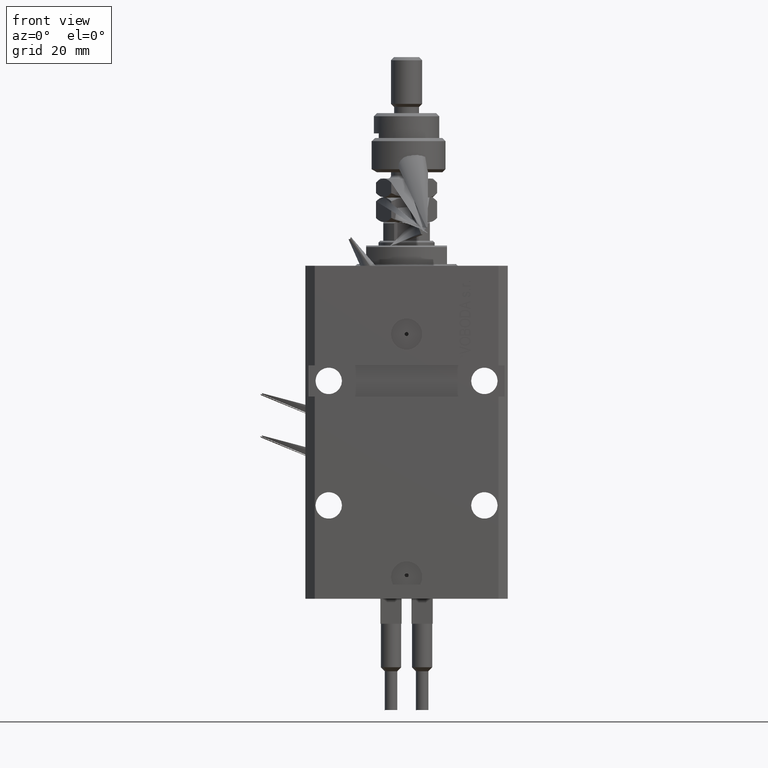
[diagram: clean part render]
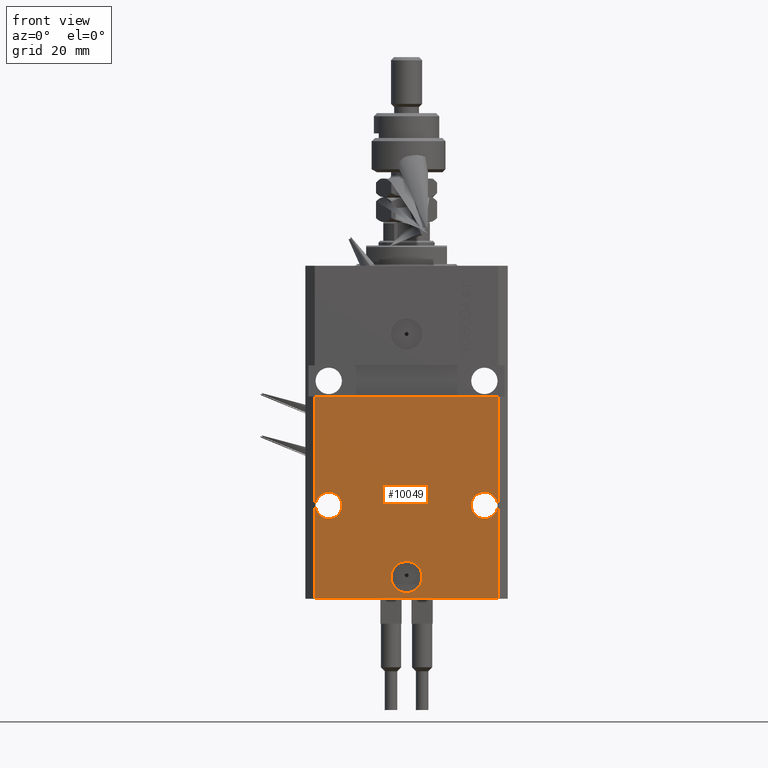
[diagram: same view with one face highlighted and labeled with its STEP entity id]
A machine part, front view. The second image highlights one B-rep face of the part: STEP entity #10049.
In plain terms, the highlighted planar face has unit normal (0, -1, 0).
Its self-contained STEP definition (entity closure, byte-faithful):
#126 = AXIS2_PLACEMENT_3D ( 'NONE', #11682, #27493, #43325 ) ;
#270 = CARTESIAN_POINT ( 'NONE',  ( -29.49999999999650413, -22.49999999999949907, -107.0000000000000000 ) ) ;
#1171 = ORIENTED_EDGE ( 'NONE', *, *, #51095, .F. ) ;
#2098 = CARTESIAN_POINT ( 'NONE',  ( 20.75000000001094946, -22.49999999999949196, -76.99999999999998579 ) ) ;
#2293 = CARTESIAN_POINT ( 'NONE',  ( -29.49999999999650413, -22.49999999999949907, -41.99999999999999289 ) ) ;
#2400 = CARTESIAN_POINT ( 'NONE',  ( -32.49999999999650413, -22.49999999999949907, -41.99999999999999289 ) ) ;
#2899 = VERTEX_POINT ( 'NONE', #29773 ) ;
#3621 = EDGE_LOOP ( 'NONE', ( #13645, #33598 ) ) ;
#3998 = CARTESIAN_POINT ( 'NONE',  ( -25.00000000000000000, -22.49999999999949907, -76.99999999999998579 ) ) ;
#4174 = FACE_BOUND ( 'NONE', #3621, .T. ) ;
#4769 = DIRECTION ( 'NONE',  ( 1.000000000000000000, 0.000000000000000000, 0.000000000000000000 ) ) ;
#5042 = DIRECTION ( 'NONE',  ( 1.000000000000000000, 0.000000000000000000, 0.000000000000000000 ) ) ;
#5896 = CARTESIAN_POINT ( 'NONE',  ( -29.49999999999650413, -22.49999999999949907, -107.0000000000000000 ) ) ;
#6195 = ORIENTED_EDGE ( 'NONE', *, *, #25106, .F. ) ;
#6659 = CARTESIAN_POINT ( 'NONE',  ( 29.24999999998906475, -22.49999999999949196, -76.99999999999998579 ) ) ;
#7210 = LINE ( 'NONE', #7465, #45698 ) ;
#7256 = CIRCLE ( 'NONE', #29616, 5.000000000000006217 ) ;
#7370 = ORIENTED_EDGE ( 'NONE', *, *, #40237, .F. ) ;
#7465 = CARTESIAN_POINT ( 'NONE',  ( -29.49999999999650413, -22.49999999999949907, -107.0000000000000000 ) ) ;
#7816 = FACE_BOUND ( 'NONE', #10554, .T. ) ;
#8171 = CARTESIAN_POINT ( 'NONE',  ( -20.75000000002340883, -22.49999999999949907, -76.99999999999998579 ) ) ;
#9167 = DIRECTION ( 'NONE',  ( 1.176083712526788232E-16, -1.000000000000000000, 0.000000000000000000 ) ) ;
#9226 = VERTEX_POINT ( 'NONE', #5896 ) ;
#9853 = CARTESIAN_POINT ( 'NONE',  ( 29.49999999999650413, -22.49999999999949196, -107.0000000000000000 ) ) ;
#9932 = DIRECTION ( 'NONE',  ( 1.000000000000000000, 1.067522139062765303E-16, 1.067522139062765303E-16 ) ) ;
#10049 = ADVANCED_FACE ( 'NONE', ( #4174, #43347, #7816, #19999 ), #35823, .T. ) ;
#10066 = ORIENTED_EDGE ( 'NONE', *, *, #43460, .F. ) ;
#10239 = VERTEX_POINT ( 'NONE', #38575 ) ;
#10554 = EDGE_LOOP ( 'NONE', ( #35894, #12705 ) ) ;
#11152 = DIRECTION ( 'NONE',  ( 0.000000000000000000, 0.000000000000000000, 1.000000000000000000 ) ) ;
#11218 = VERTEX_POINT ( 'NONE', #40902 ) ;
#11682 = CARTESIAN_POINT ( 'NONE',  ( -25.00000000000000000, -22.49999999999949907, -76.99999999999998579 ) ) ;
#12247 = DIRECTION ( 'NONE',  ( 1.000000000000000000, 0.000000000000000000, 0.000000000000000000 ) ) ;
#12705 = ORIENTED_EDGE ( 'NONE', *, *, #16562, .F. ) ;
#12988 = VERTEX_POINT ( 'NONE', #9853 ) ;
#13047 = DIRECTION ( 'NONE',  ( 1.000000000000000000, 0.000000000000000000, 0.000000000000000000 ) ) ;
#13645 = ORIENTED_EDGE ( 'NONE', *, *, #42420, .F. ) ;
#14056 = EDGE_CURVE ( 'NONE', #45373, #10239, #22393, .T. ) ;
#14448 = DIRECTION ( 'NONE',  ( 1.176083712526788232E-16, -1.000000000000000000, 0.000000000000000000 ) ) ;
#14691 = DIRECTION ( 'NONE',  ( 1.000000000000000000, 1.176083712526788232E-16, 0.000000000000000000 ) ) ;
#14772 = LINE ( 'NONE', #19189, #25259 ) ;
#16562 = EDGE_CURVE ( 'NONE', #10239, #45373, #23326, .T. ) ;
#16792 = EDGE_CURVE ( 'NONE', #9226, #12988, #7210, .T. ) ;
#17443 = LINE ( 'NONE', #2400, #41000 ) ;
#18930 = DIRECTION ( 'NONE',  ( 0.000000000000000000, 0.000000000000000000, 1.000000000000000000 ) ) ;
#19189 = CARTESIAN_POINT ( 'NONE',  ( 29.49999999999650413, -22.49999999999949196, -107.0000000000000000 ) ) ;
#19999 = FACE_OUTER_BOUND ( 'NONE', #43758, .T. ) ;
#21531 = AXIS2_PLACEMENT_3D ( 'NONE', #3998, #47341, #31499 ) ;
#22393 = CIRCLE ( 'NONE', #21531, 4.249999999976592058 ) ;
#22756 = VERTEX_POINT ( 'NONE', #2098 ) ;
#22802 = VECTOR ( 'NONE', #11152, 1000.000000000000000 ) ;
#23326 = CIRCLE ( 'NONE', #126, 4.249999999976592058 ) ;
#23332 = CIRCLE ( 'NONE', #30797, 4.249999999989057642 ) ;
#25106 = EDGE_CURVE ( 'NONE', #50817, #11218, #17443, .T. ) ;
#25124 = ORIENTED_EDGE ( 'NONE', *, *, #16792, .T. ) ;
#25259 = VECTOR ( 'NONE', #18930, 1000.000000000000000 ) ;
#26202 = CARTESIAN_POINT ( 'NONE',  ( -29.49999999999650413, -22.49999999999949907, -107.0000000000000000 ) ) ;
#26726 = CIRCLE ( 'NONE', #31690, 5.000000000000006217 ) ;
#27493 = DIRECTION ( 'NONE',  ( 1.176083712526788232E-16, -1.000000000000000000, 0.000000000000000000 ) ) ;
#27977 = EDGE_CURVE ( 'NONE', #2899, #45044, #7256, .T. ) ;
#28320 = DIRECTION ( 'NONE',  ( 1.176083712526788232E-16, -1.000000000000000000, 0.000000000000000000 ) ) ;
#28376 = AXIS2_PLACEMENT_3D ( 'NONE', #47801, #28320, #12247 ) ;
#29616 = AXIS2_PLACEMENT_3D ( 'NONE', #44478, #36184, #5042 ) ;
#29773 = CARTESIAN_POINT ( 'NONE',  ( -5.000000000000003553, -22.49999999999949551, -99.99999999999998579 ) ) ;
#29987 = EDGE_LOOP ( 'NONE', ( #10066, #7370 ) ) ;
#30797 = AXIS2_PLACEMENT_3D ( 'NONE', #48359, #9167, #13047 ) ;
#30911 = CIRCLE ( 'NONE', #28376, 4.249999999989057642 ) ;
#31499 = DIRECTION ( 'NONE',  ( -1.000000000000000000, 0.000000000000000000, 0.000000000000000000 ) ) ;
#31690 = AXIS2_PLACEMENT_3D ( 'NONE', #32272, #32020, #4769 ) ;
#31865 = VERTEX_POINT ( 'NONE', #6659 ) ;
#32020 = DIRECTION ( 'NONE',  ( 1.176083712526788232E-16, -1.000000000000000000, 0.000000000000000000 ) ) ;
#32272 = CARTESIAN_POINT ( 'NONE',  ( 2.646188353185214061E-15, -22.49999999999949551, -99.99999999999998579 ) ) ;
#33598 = ORIENTED_EDGE ( 'NONE', *, *, #27977, .F. ) ;
#34911 = ORIENTED_EDGE ( 'NONE', *, *, #51048, .T. ) ;
#35823 = PLANE ( 'NONE',  #50569 ) ;
#35894 = ORIENTED_EDGE ( 'NONE', *, *, #14056, .F. ) ;
#36184 = DIRECTION ( 'NONE',  ( 1.176083712526788232E-16, -1.000000000000000000, 0.000000000000000000 ) ) ;
#38575 = CARTESIAN_POINT ( 'NONE',  ( -29.24999999997659472, -22.49999999999949907, -76.99999999999998579 ) ) ;
#38866 = DIRECTION ( 'NONE',  ( 1.000000000000000000, 1.176083712526788232E-16, 0.000000000000000000 ) ) ;
#39381 = CARTESIAN_POINT ( 'NONE',  ( 5.000000000000008882, -22.49999999999949551, -99.99999999999998579 ) ) ;
#40237 = EDGE_CURVE ( 'NONE', #22756, #31865, #23332, .T. ) ;
#40902 = CARTESIAN_POINT ( 'NONE',  ( 29.49999999999650058, -22.49999999999949196, -41.99999999999998579 ) ) ;
#41000 = VECTOR ( 'NONE', #9932, 1000.000000000000000 ) ;
#42420 = EDGE_CURVE ( 'NONE', #45044, #2899, #26726, .T. ) ;
#43325 = DIRECTION ( 'NONE',  ( -1.000000000000000000, 0.000000000000000000, 0.000000000000000000 ) ) ;
#43347 = FACE_BOUND ( 'NONE', #29987, .T. ) ;
#43460 = EDGE_CURVE ( 'NONE', #31865, #22756, #30911, .T. ) ;
#43758 = EDGE_LOOP ( 'NONE', ( #6195, #1171, #25124, #34911 ) ) ;
#44478 = CARTESIAN_POINT ( 'NONE',  ( 2.646188353185214061E-15, -22.49999999999949551, -99.99999999999998579 ) ) ;
#45044 = VERTEX_POINT ( 'NONE', #39381 ) ;
#45373 = VERTEX_POINT ( 'NONE', #8171 ) ;
#45698 = VECTOR ( 'NONE', #38866, 1000.000000000000000 ) ;
#46445 = LINE ( 'NONE', #26202, #22802 ) ;
#47341 = DIRECTION ( 'NONE',  ( 1.176083712526788232E-16, -1.000000000000000000, 0.000000000000000000 ) ) ;
#47801 = CARTESIAN_POINT ( 'NONE',  ( 25.00000000000000711, -22.49999999999949196, -76.99999999999998579 ) ) ;
#48359 = CARTESIAN_POINT ( 'NONE',  ( 25.00000000000000711, -22.49999999999949196, -76.99999999999998579 ) ) ;
#50569 = AXIS2_PLACEMENT_3D ( 'NONE', #270, #14448, #14691 ) ;
#50817 = VERTEX_POINT ( 'NONE', #2293 ) ;
#51048 = EDGE_CURVE ( 'NONE', #12988, #11218, #14772, .T. ) ;
#51095 = EDGE_CURVE ( 'NONE', #9226, #50817, #46445, .T. ) ;